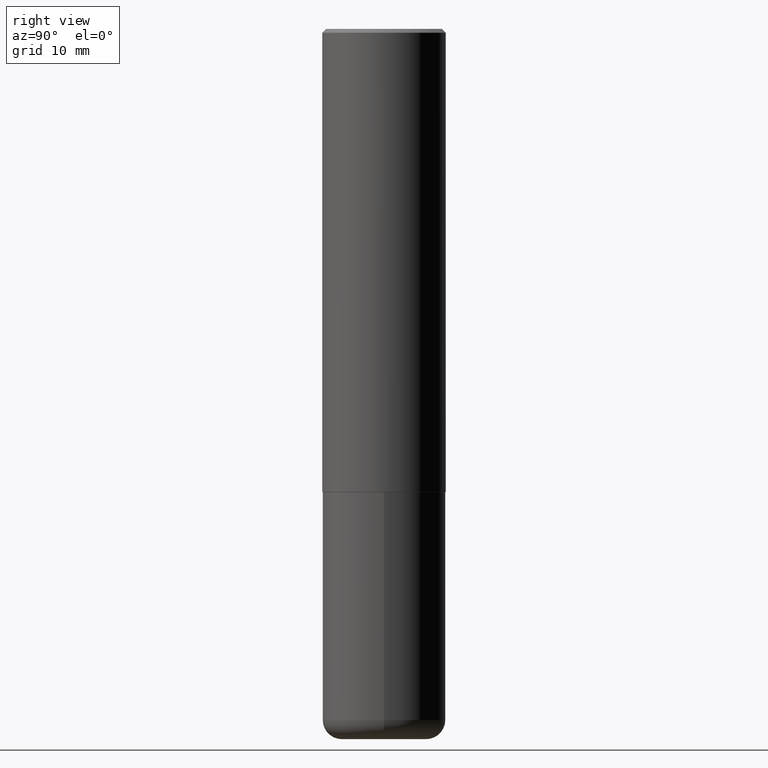
[diagram: clean part render]
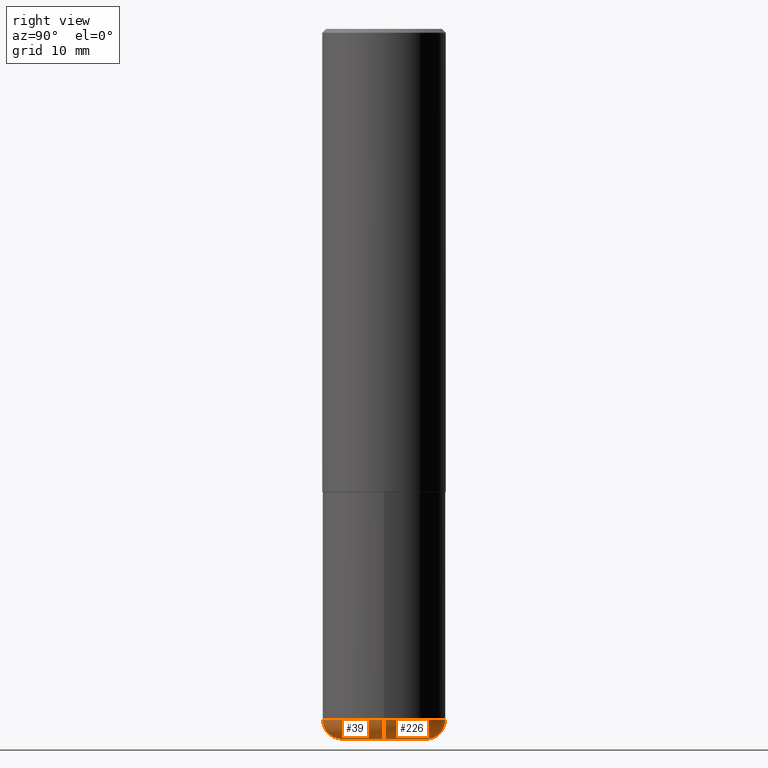
[diagram: same view with one multi-face feature highlighted, each face labeled with its STEP entity id]
A machine part, right view. The highlighted faces form ONE feature: a constant-radius fillet chain: 2 tangent blend faces with common blend radius 2.4994 mm. The faces share edges in the B-rep.
Their STEP definitions:
[1] entity #226 (Torus):
#16 = CARTESIAN_POINT ( 'NONE',  ( -0.2165500000000000203, -1.058609720713632398E-14, -3.621999999999999442 ) ) ;
#22 = CARTESIAN_POINT ( 'NONE',  ( 0.2165500000000000203, -1.381474421340066671E-14, -3.523599999999999621 ) ) ;
#50 = DIRECTION ( 'NONE',  ( 1.000000000000000000, -6.982962677686266711E-15, 4.883557194083112901E-29 ) ) ;
#56 = CARTESIAN_POINT ( 'NONE',  ( 8.616853885473946211E-29, -1.230258364554770589E-14, -3.523599999999999621 ) ) ;
#57 = ORIENTED_EDGE ( 'NONE', *, *, #218, .F. ) ;
#65 = DIRECTION ( 'NONE',  ( 1.000000000000000000, -6.982962677686264344E-15, 0.000000000000000000 ) ) ;
#72 = VERTEX_POINT ( 'NONE', #206 ) ;
#75 = CARTESIAN_POINT ( 'NONE',  ( -0.2165500000000000203, -1.076390335125921037E-14, -3.523599999999999621 ) ) ;
#77 = ORIENTED_EDGE ( 'NONE', *, *, #292, .F. ) ;
#78 = TOROIDAL_SURFACE ( 'NONE', #294, 0.2165500000000000203, 0.09839999999999984870 ) ;
#80 = DIRECTION ( 'NONE',  ( -2.445468806185136597E-29, 3.491481338843145583E-15, 1.000000000000000000 ) ) ;
#85 = CIRCLE ( 'NONE', #197, 0.3149500000000000077 ) ;
#90 = EDGE_CURVE ( 'NONE', #113, #72, #159, .T. ) ;
#113 = VERTEX_POINT ( 'NONE', #16 ) ;
#142 = CARTESIAN_POINT ( 'NONE',  ( 0.3149499999999999522, -1.450186774088499734E-14, -3.523599999999999621 ) ) ;
#144 = DIRECTION ( 'NONE',  ( -1.000000000000000000, 7.105427357601009747E-15, 0.000000000000000000 ) ) ;
#159 = CIRCLE ( 'NONE', #223, 0.09839999999999986258 ) ;
#188 = CARTESIAN_POINT ( 'NONE',  ( 0.2165500000000000203, -1.415830597714283123E-14, -3.621999999999999442 ) ) ;
#197 = AXIS2_PLACEMENT_3D ( 'NONE', #56, #382, #407 ) ;
#203 = DIRECTION ( 'NONE',  ( 7.105427357601001859E-15, 1.000000000000000000, -3.491481338843145583E-15 ) ) ;
#206 = CARTESIAN_POINT ( 'NONE',  ( -0.3149499999999999522, -1.006472929927126990E-14, -3.523599999999999621 ) ) ;
#218 = EDGE_CURVE ( 'NONE', #284, #72, #85, .T. ) ;
#223 = AXIS2_PLACEMENT_3D ( 'NONE', #75, #203, #144 ) ;
#226 = ADVANCED_FACE ( 'NONE', ( #413 ), #78, .T. ) ;
#254 = DIRECTION ( 'NONE',  ( 1.000000000000000000, -6.982962677686271444E-15, 0.000000000000000000 ) ) ;
#257 = DIRECTION ( 'NONE',  ( -6.982962677686266711E-15, -1.000000000000000000, 3.491481338843145583E-15 ) ) ;
#284 = VERTEX_POINT ( 'NONE', #142 ) ;
#292 = EDGE_CURVE ( 'NONE', #400, #284, #339, .T. ) ;
#294 = AXIS2_PLACEMENT_3D ( 'NONE', #346, #80, #50 ) ;
#317 = ORIENTED_EDGE ( 'NONE', *, *, #90, .T. ) ;
#321 = DIRECTION ( 'NONE',  ( -2.445468806185136597E-29, 3.491481338843145583E-15, 1.000000000000000000 ) ) ;
#332 = CIRCLE ( 'NONE', #367, 0.2165500000000000203 ) ;
#339 = CIRCLE ( 'NONE', #391, 0.09839999999999986258 ) ;
#346 = CARTESIAN_POINT ( 'NONE',  ( 8.616853885473946211E-29, -1.230258364554770589E-14, -3.523599999999999621 ) ) ;
#352 = ORIENTED_EDGE ( 'NONE', *, *, #364, .T. ) ;
#355 = CARTESIAN_POINT ( 'NONE',  ( 8.857488016002563354E-29, -1.264614540928987041E-14, -3.621999999999999442 ) ) ;
#364 = EDGE_CURVE ( 'NONE', #400, #113, #332, .T. ) ;
#367 = AXIS2_PLACEMENT_3D ( 'NONE', #355, #321, #65 ) ;
#382 = DIRECTION ( 'NONE',  ( -2.445468806185136597E-29, 3.491481338843145583E-15, 1.000000000000000000 ) ) ;
#383 = EDGE_LOOP ( 'NONE', ( #352, #317, #57, #77 ) ) ;
#391 = AXIS2_PLACEMENT_3D ( 'NONE', #22, #257, #254 ) ;
#400 = VERTEX_POINT ( 'NONE', #188 ) ;
#407 = DIRECTION ( 'NONE',  ( 1.000000000000000000, -6.982962677686269866E-15, 0.000000000000000000 ) ) ;
#413 = FACE_OUTER_BOUND ( 'NONE', #383, .T. ) ;
[2] entity #39 (Torus):
#4 = TOROIDAL_SURFACE ( 'NONE', #60, 0.2165500000000000203, 0.09839999999999984870 ) ;
#7 = DIRECTION ( 'NONE',  ( 1.000000000000000000, -6.982962677686266711E-15, 4.883557194083112901E-29 ) ) ;
#9 = ORIENTED_EDGE ( 'NONE', *, *, #90, .F. ) ;
#16 = CARTESIAN_POINT ( 'NONE',  ( -0.2165500000000000203, -1.058609720713632398E-14, -3.621999999999999442 ) ) ;
#22 = CARTESIAN_POINT ( 'NONE',  ( 0.2165500000000000203, -1.381474421340066671E-14, -3.523599999999999621 ) ) ;
#24 = DIRECTION ( 'NONE',  ( 1.000000000000000000, -6.982962677686269866E-15, 0.000000000000000000 ) ) ;
#39 = ADVANCED_FACE ( 'NONE', ( #300 ), #4, .T. ) ;
#60 = AXIS2_PLACEMENT_3D ( 'NONE', #238, #200, #7 ) ;
#72 = VERTEX_POINT ( 'NONE', #206 ) ;
#75 = CARTESIAN_POINT ( 'NONE',  ( -0.2165500000000000203, -1.076390335125921037E-14, -3.523599999999999621 ) ) ;
#88 = CARTESIAN_POINT ( 'NONE',  ( 8.616853885473946211E-29, -1.230258364554770589E-14, -3.523599999999999621 ) ) ;
#90 = EDGE_CURVE ( 'NONE', #113, #72, #159, .T. ) ;
#113 = VERTEX_POINT ( 'NONE', #16 ) ;
#118 = CIRCLE ( 'NONE', #255, 0.3149500000000000077 ) ;
#127 = CIRCLE ( 'NONE', #324, 0.2165500000000000203 ) ;
#142 = CARTESIAN_POINT ( 'NONE',  ( 0.3149499999999999522, -1.450186774088499734E-14, -3.523599999999999621 ) ) ;
#144 = DIRECTION ( 'NONE',  ( -1.000000000000000000, 7.105427357601009747E-15, 0.000000000000000000 ) ) ;
#159 = CIRCLE ( 'NONE', #223, 0.09839999999999986258 ) ;
#175 = DIRECTION ( 'NONE',  ( -2.445468806185136597E-29, 3.491481338843145583E-15, 1.000000000000000000 ) ) ;
#188 = CARTESIAN_POINT ( 'NONE',  ( 0.2165500000000000203, -1.415830597714283123E-14, -3.621999999999999442 ) ) ;
#200 = DIRECTION ( 'NONE',  ( -2.445468806185136597E-29, 3.491481338843145583E-15, 1.000000000000000000 ) ) ;
#201 = ORIENTED_EDGE ( 'NONE', *, *, #234, .F. ) ;
#203 = DIRECTION ( 'NONE',  ( 7.105427357601001859E-15, 1.000000000000000000, -3.491481338843145583E-15 ) ) ;
#206 = CARTESIAN_POINT ( 'NONE',  ( -0.3149499999999999522, -1.006472929927126990E-14, -3.523599999999999621 ) ) ;
#220 = DIRECTION ( 'NONE',  ( -2.445468806185136597E-29, 3.491481338843145583E-15, 1.000000000000000000 ) ) ;
#222 = EDGE_CURVE ( 'NONE', #113, #400, #127, .T. ) ;
#223 = AXIS2_PLACEMENT_3D ( 'NONE', #75, #203, #144 ) ;
#234 = EDGE_CURVE ( 'NONE', #72, #284, #118, .T. ) ;
#238 = CARTESIAN_POINT ( 'NONE',  ( 8.616853885473946211E-29, -1.230258364554770589E-14, -3.523599999999999621 ) ) ;
#241 = EDGE_LOOP ( 'NONE', ( #9, #303, #265, #201 ) ) ;
#254 = DIRECTION ( 'NONE',  ( 1.000000000000000000, -6.982962677686271444E-15, 0.000000000000000000 ) ) ;
#255 = AXIS2_PLACEMENT_3D ( 'NONE', #88, #175, #24 ) ;
#257 = DIRECTION ( 'NONE',  ( -6.982962677686266711E-15, -1.000000000000000000, 3.491481338843145583E-15 ) ) ;
#265 = ORIENTED_EDGE ( 'NONE', *, *, #292, .T. ) ;
#269 = DIRECTION ( 'NONE',  ( 1.000000000000000000, -6.982962677686264344E-15, 0.000000000000000000 ) ) ;
#284 = VERTEX_POINT ( 'NONE', #142 ) ;
#292 = EDGE_CURVE ( 'NONE', #400, #284, #339, .T. ) ;
#300 = FACE_OUTER_BOUND ( 'NONE', #241, .T. ) ;
#303 = ORIENTED_EDGE ( 'NONE', *, *, #222, .T. ) ;
#316 = CARTESIAN_POINT ( 'NONE',  ( 8.857488016002563354E-29, -1.264614540928987041E-14, -3.621999999999999442 ) ) ;
#324 = AXIS2_PLACEMENT_3D ( 'NONE', #316, #220, #269 ) ;
#339 = CIRCLE ( 'NONE', #391, 0.09839999999999986258 ) ;
#391 = AXIS2_PLACEMENT_3D ( 'NONE', #22, #257, #254 ) ;
#400 = VERTEX_POINT ( 'NONE', #188 ) ;